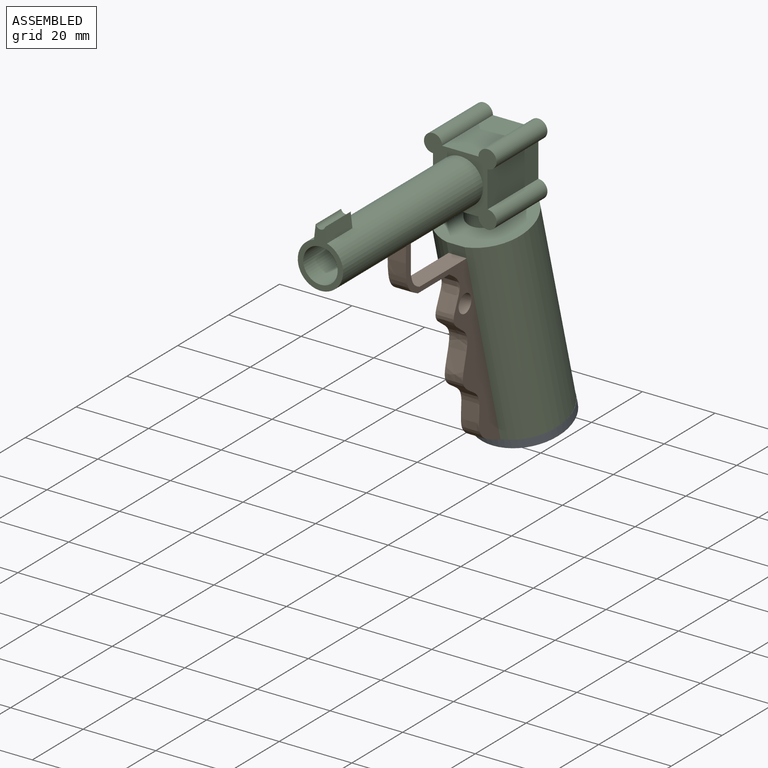
[diagram: assembled view]
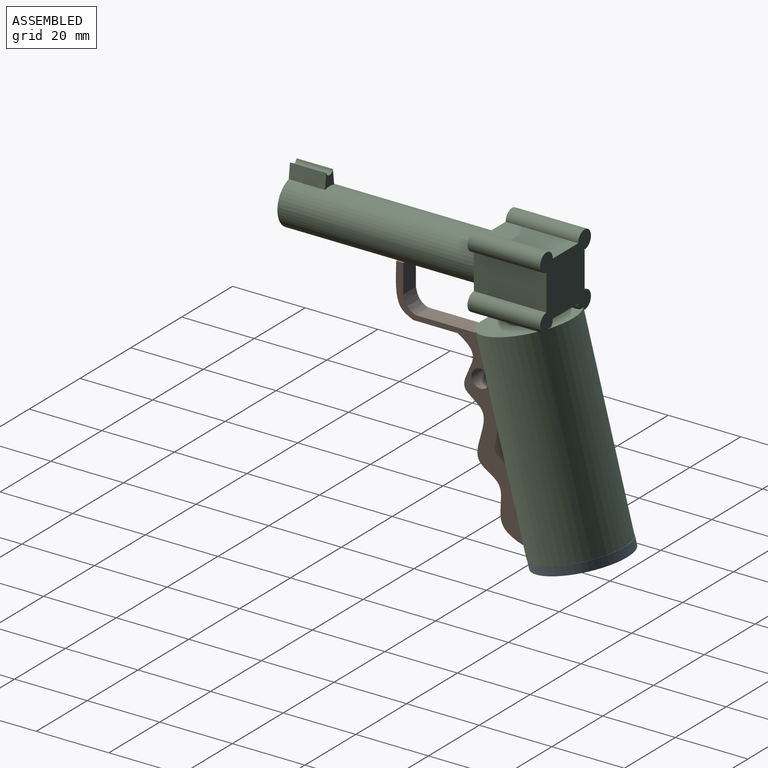
[diagram: assembled view, second angle]
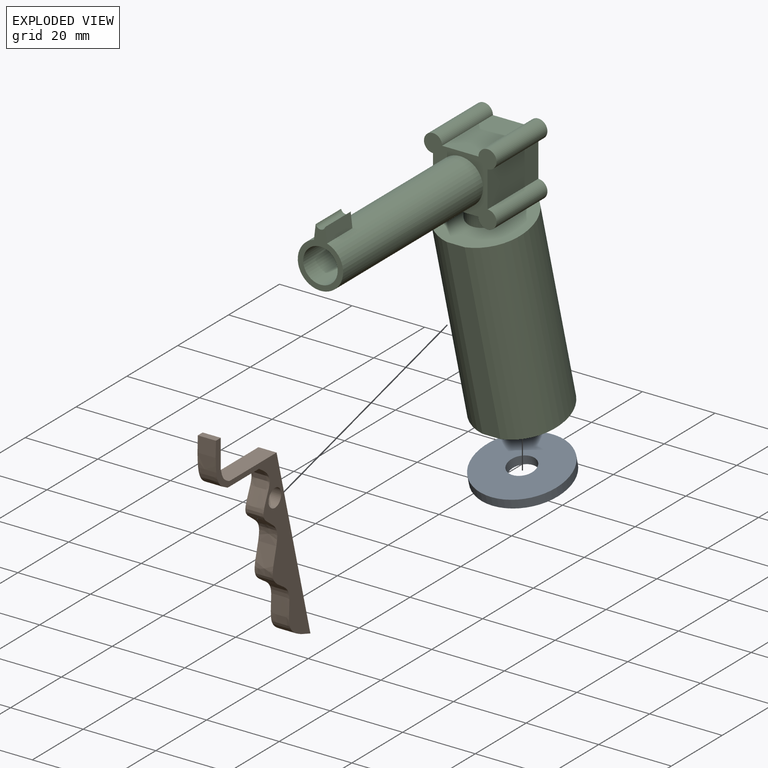
[diagram: exploded view]
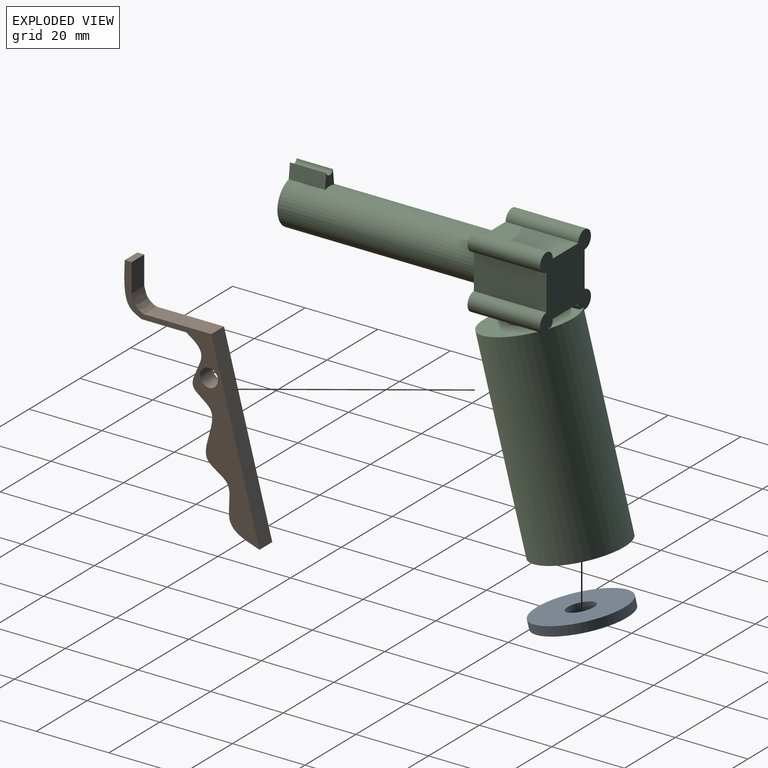
[diagram: exploded view, second angle]
ASSEMBLY  parts=3 mates=2
PART A: 4 faces, bbox 25x2.5x25 mm
  f0: cylinder r=12.5mm len=25mm, axis (0,1,0), area 196.3mm2, adj f1,f2
  f1: plane 25x25mm, normal (0,-1,0), area 446.7mm2, adj f0,f3
  f2: plane 25x25mm, normal (0,1,0), area 446.7mm2, adj f0,f3
  f3: cylinder r=3.75mm len=7.5mm, axis (0,-1,0), area 58.9mm2, adj f1,f2
PART B: 11 faces, bbox 5x37.5x62.2 mm
  f0: extruded ~5x4.24mm, area 28.9mm2, adj f1,f7,f8,f9
  f1: plane 7.82x5mm, normal (0,1,0), area 39.1mm2, adj f0,f2,f8,f9
  f2: plane 5x1.9mm, normal (0,0,1), area 9.5mm2, adj f1,f3,f8,f9
  f3: extruded ~13.46x5mm, area 77.8mm2, adj f2,f4,f8,f9
  f4: plane 12.3x5mm, normal (0,0,-1), area 61.5mm2, adj f3,f5,f8,f9
  f5: extruded ~48.73x20.19mm, area 306.2mm2, adj f4,f6,f8,f9
  f6: plane 50.12x13.27mm, normal (0,0.97,0.26), area 259.2mm2, adj f5,f7,f8,f9
  f7: plane 18.53x5mm, normal (0,0,1), area 92.6mm2, adj f0,f6,f8,f9
  f8: plane 62.19x37.49mm, normal (1,0,0), area 348.1mm2, adj f0,f1,f2,f3,f4,f5,f6,f7
  f9: plane 62.19x37.49mm, normal (-1,0,0), area 348.1mm2, adj f0,f1,f2,f3,f4,f5,f6,f7
  f10: cylinder r=2.5mm len=5mm, axis (1,0,0), area 78.5mm2, adj f8,f9
PART C: 49 faces, bbox 25.6x91.7x78.8 mm
  f0: plane 25x23.92mm, normal (0,0.26,-0.97), area 92.4mm2, adj f27,f32,f36
  f1: plane 25.56x24.48mm, normal (0,-0.26,0.97), area 398mm2, adj f6,f7,f8,f10,f27,f36
  f2: plane 4x3.59mm, normal (0,1,0), area 9.9mm2, adj f19,f33,f34,f35
  f3: plane 16.24x12.5mm, normal (0,-1,0), area 61.7mm2, adj f19,f20,f33,f34,f35
  f4: cylinder r=3.75mm len=7.89mm, axis (0,0.26,-0.97), area 58.9mm2, adj f5,f28,f29,f30,f31
  f5: plane 7.5x3.8mm, normal (0,-0.26,0.97), area 1.6mm2, adj f4,f9
  f6: cylinder r=2.5mm len=20mm, axis (0,1,0), area 230mm2, adj f1,f8,f11,f15,f16,f18,f27
  f7: cylinder r=2.5mm len=20mm, axis (0,1,0), area 230mm2, adj f1,f8,f11,f14,f15,f18,f27
  f8: plane 20.01x20.01mm, normal (0,1,0), area 282.6mm2, adj f1,f6,f7,f11,f12,f13,f14,f16
  f9: cylinder r=3.75mm len=7.5mm, axis (0,0,-1), area 139.4mm2, adj f5,f22,f28,f29,f30
  f10: cylinder r=5mm len=10mm, axis (0,0,1), area 140.2mm2, adj f1,f11,f15
  f11: plane 10x10mm, normal (0,0,-1), area 60.7mm2, adj f6,f7,f8,f10
  f12: plane 20x10mm, normal (0,0,1), area 200mm2, adj f8,f13,f17,f18
  f13: cylinder r=2.5mm len=20mm, axis (0,1,0), area 235.6mm2, adj f8,f12,f14,f18
  f14: plane 20x10mm, normal (-1,0,0), area 200mm2, adj f7,f8,f13,f18
  f15: plane 10x10mm, normal (0,0,-1), area 60.7mm2, adj f6,f7,f10,f18
  f16: plane 20x10mm, normal (1,0,0), area 200mm2, adj f6,f8,f17,f18
  f17: cylinder r=2.5mm len=20mm, axis (0,1,0), area 235.6mm2, adj f8,f12,f16,f18
  f18: plane 20x20mm, normal (0,-1,0), area 161.2mm2, adj f6,f7,f12,f13,f14,f15,f16,f17
  f19: cylinder r=6.25mm len=55mm, axis (0,1,0), area 2123.4mm2, adj f2,f3,f18,f33,f34
  f20: cylinder r=4.75mm len=56.5mm, axis (0,1,0), area 1686.2mm2, adj f3,f25
  f21: plane 17x12mm, normal (-1,0,0), area 204mm2, adj f22,f24,f25,f26
  f22: plane 17x12mm, normal (0,0,1), area 159.8mm2, adj f9,f21,f23,f25,f26
  f23: plane 17x12mm, normal (1,0,0), area 204mm2, adj f22,f24,f25,f26
  f24: plane 17x12mm, normal (0,0,-1), area 204mm2, adj f21,f23,f25,f26
  f25: plane 12x12mm, normal (0,1,0), area 73.1mm2, adj f20,f21,f22,f23,f24
  f26: plane 12x12mm, normal (0,-1,0), area 144mm2, adj f21,f22,f23,f24
  f27: cylinder r=12.5mm len=59.51mm, axis (0,-0.26,0.97), area 4041.2mm2, adj f0,f1,f6,f7,f8,f36
  f28: plane 3.89x0.54mm, normal (0,-0.26,0.97), area 0mm2, adj f4,f9
  f29: plane 3.15x1.81mm, normal (0,0.26,-0.97), area 0.1mm2, adj f4,f9
  f30: plane 3.15x1.81mm, normal (0,0.26,-0.97), area 0.1mm2, adj f4,f9
  f31: plane 22.5x21.75mm, normal (0,0.26,-0.97), area 353.4mm2, adj f4,f32
  f32: cylinder r=11.25mm len=56.51mm, axis (0,0.26,-0.97), area 3711mm2, adj f0,f31
  f33: plane 10x4mm, normal (0.99,0,0.12), area 40.3mm2, adj f2,f3,f19,f35
  f34: plane 10x4mm, normal (-0.99,0,0.12), area 40.3mm2, adj f2,f3,f19,f35
  f35: cylinder r=1.37mm len=10mm, axis (0,-1,0), area 35.5mm2, adj f2,f3,f33,f34
  f36: plane 53.16x14.1mm, normal (0,-0.97,-0.26), area 275mm2, adj f0,f1,f27
  f37: plane 2x2mm, normal (0,1,0), area 3.1mm2, adj f38
  f38: cylinder r=1mm len=17mm, axis (0,1,0), area 106.8mm2, adj f37,f39
  f39: plane 2x2mm, normal (0,-1,0), area 3.1mm2, adj f38
  f40: cylinder r=1mm len=17mm, axis (0,1,0), area 106.8mm2, adj f41,f42
  f41: plane 2x2mm, normal (0,-1,0), area 3.1mm2, adj f40
  f42: plane 2x2mm, normal (0,1,0), area 3.1mm2, adj f40
  f43: cylinder r=1mm len=17mm, axis (0,1,0), area 106.8mm2, adj f44,f45
  f44: plane 2x2mm, normal (0,-1,0), area 3.1mm2, adj f43
  f45: plane 2x2mm, normal (0,1,0), area 3.1mm2, adj f43
  f46: plane 2x2mm, normal (0,1,0), area 3.1mm2, adj f47
  f47: cylinder r=1mm len=17mm, axis (0,1,0), area 106.8mm2, adj f46,f48
  f48: plane 2x2mm, normal (0,-1,0), area 3.1mm2, adj f47
PLACE A rot(axis=(-1,0,0),75.1deg) t=(-44.62,-43.43,-68.6)mm
PLACE B rot(axis=(1,0,0),0deg) t=(-75,-49.2,-1.48)mm
PLACE C t=(-47.5,-49.49,-1.45)mm
MATE fastened B.f6 <-> C.f36  axis (0,0.97,0.26) through (-47.5,-57.22,-69.67)mm
MATE fastened A.f0 <-> C.f32  axis (0,-0.26,0.97) through (-47.5,-45.27,-66.5)mm
